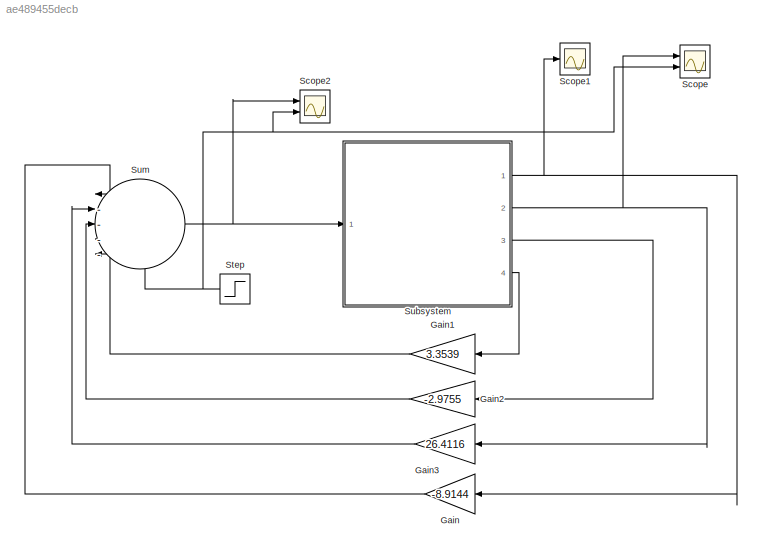
MODEL slx_ae489455decb
KIND model
CONFIG AbsTol = auto
CONFIG EnableMultiTasking = off
CONFIG FixedStep = auto
CONFIG MaxStep = auto
CONFIG MinStep = auto
CONFIG RelTol = 1e-3
CONFIG SampleTimeConstraint = Unconstrained
CONFIG Solver = VariableStepAuto
CONFIG SolverName = VariableStepAuto
CONFIG StartTime = 0.0
CONFIG StopTime = 30
BLOCK [Gain] Gain
  Gain = -8.9144
  OutDataTypeStr = Inherit: Inherit via internal rule
  ParamDataTypeStr = Inherit: Inherit via internal rule
  SaturateOnIntegerOverflow = off
BLOCK [Gain] Gain1
  Gain = 3.3539
  OutDataTypeStr = Inherit: Inherit via internal rule
  ParamDataTypeStr = Inherit: Inherit via internal rule
  SaturateOnIntegerOverflow = off
BLOCK [Gain] Gain2
  Gain = -2.9755
  OutDataTypeStr = Inherit: Inherit via internal rule
  ParamDataTypeStr = Inherit: Inherit via internal rule
  SaturateOnIntegerOverflow = off
BLOCK [Gain] Gain3
  Gain = 26.4116
  OutDataTypeStr = Inherit: Inherit via internal rule
  ParamDataTypeStr = Inherit: Inherit via internal rule
  SaturateOnIntegerOverflow = off
BLOCK [Scope] Scope
  Floating = off
  NumInputPorts = 2
  Ports = [2]
  ScopeSpecificationString = Simulink.scopes.TimeScopeBlockCfg('CurrentConfiguration', extmgr.ConfigurationSet(extmgr.Configuration('Core','General UI',true),extmgr.Configuration('Core','Source UI',true),extmgr.Configuration('Sources','WiredSimulink',true),extmgr.Configuration('Visuals','Time Domain',true,'SerializedDisplays',{struct('MinYLimReal','-0.19354','MaxYLimReal','1.13262','YLabelReal','','MinYLimMag','0.00000','MaxY...<+1393ch>
BLOCK [Scope] Scope1
  Floating = off
  NumInputPorts = 1
  Ports = [1]
  ScopeSpecificationString = Simulink.scopes.TimeScopeBlockCfg('CurrentConfiguration', extmgr.ConfigurationSet(extmgr.Configuration('Core','General UI',true),extmgr.Configuration('Core','Source UI',true),extmgr.Configuration('Sources','WiredSimulink',true,'DataLoggingVariableName','ScopeData1'),extmgr.Configuration('Visuals','Time Domain',true,'SerializedDisplays',{struct('MinYLimReal','-0.19418','MaxYLimReal','0.08278','YLab...<+1370ch>
BLOCK [Scope] Scope2
  Floating = off
  NumInputPorts = 2
  Ports = [2]
  ScopeSpecificationString = Simulink.scopes.TimeScopeBlockCfg('CurrentConfiguration', extmgr.ConfigurationSet(extmgr.Configuration('Core','General UI',true),extmgr.Configuration('Core','Source UI',true),extmgr.Configuration('Sources','WiredSimulink',true,'DataLoggingVariableName','ScopeData2'),extmgr.Configuration('Visuals','Time Domain',true,'SerializedDisplays',{struct('MinYLimReal','-1.25021','MaxYLimReal','1.25002','YLab...<+1424ch>
BLOCK [Step] Step
  After = 0
  Before = 1
  SampleTime = 0
  Time = 3
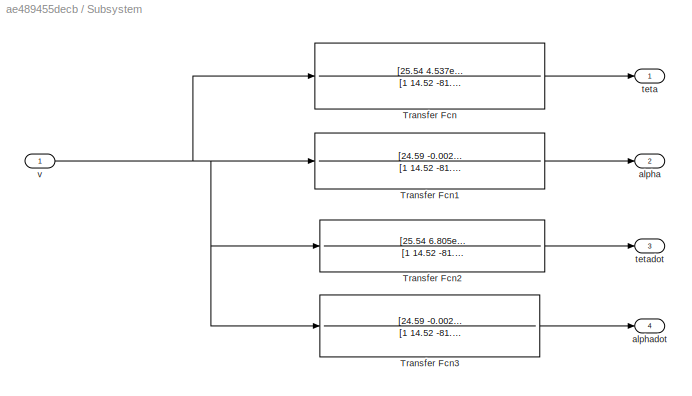
BLOCK [SubSystem] Subsystem
  Ports = [1, 4]
  RequestExecContextInheritance = off
BLOCK [TransferFcn] Subsystem/Transfer Fcn
  Denominator = [1 14.52 -81.78 -637.8 0]
  Numerator = [25.54 4.537e-14 -1122]
BLOCK [TransferFcn] Subsystem/Transfer Fcn1
  Denominator = [1 14.52 -81.78 -637.8]
  Numerator = [24.59 -0.0024]
BLOCK [TransferFcn] Subsystem/Transfer Fcn2
  Denominator = [1 14.52 -81.78 -637.8]
  Numerator = [25.54 6.805e-14 -1122]
BLOCK [TransferFcn] Subsystem/Transfer Fcn3
  Denominator = [1 14.52 -81.78 -637.8]
  Numerator = [24.59 -0.0024 0]
BLOCK [Outport] Subsystem/alpha
  IconDisplay = Port number
  Port = 2
BLOCK [Outport] Subsystem/alphadot
  IconDisplay = Port number
  Port = 4
BLOCK [Outport] Subsystem/teta
  IconDisplay = Port number
BLOCK [Outport] Subsystem/tetadot
  IconDisplay = Port number
  Port = 3
BLOCK [Inport] Subsystem/v
  IconDisplay = Port number
BLOCK [Sum] Sum
  IconShape = round
  InputSameDT = off
  Inputs = |----+
  OutDataTypeStr = Inherit: Inherit via internal rule
  Ports = [5, 1]
  SaturateOnIntegerOverflow = off
LINE Gain1:1 -> Sum:4
LINE Gain2:1 -> Sum:3
LINE Gain3:1 -> Sum:2
LINE Gain:1 -> Sum:1
NET Step:1 -> Scope2:2, Scope:2, Sum:5
LINE Subsystem/Transfer Fcn1:1 -> Subsystem/alpha:1
LINE Subsystem/Transfer Fcn2:1 -> Subsystem/tetadot:1
LINE Subsystem/Transfer Fcn3:1 -> Subsystem/alphadot:1
LINE Subsystem/Transfer Fcn:1 -> Subsystem/teta:1
NET Subsystem/v:1 -> Subsystem/Transfer Fcn1:1, Subsystem/Transfer Fcn2:1, Subsystem/Transfer Fcn3:1, Subsystem/Transfer Fcn:1
NET Subsystem:1 -> Gain:1, Scope1:1
NET Subsystem:2 -> Gain3:1, Scope:1
LINE Subsystem:3 -> Gain2:1
LINE Subsystem:4 -> Gain1:1
NET Sum:1 -> Scope2:1, Subsystem:1
note: NET lines group one-source signal fan-out (src -> all destinations, sorted); 1:1 wires keep LINE
